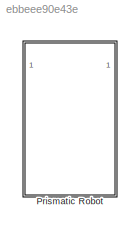
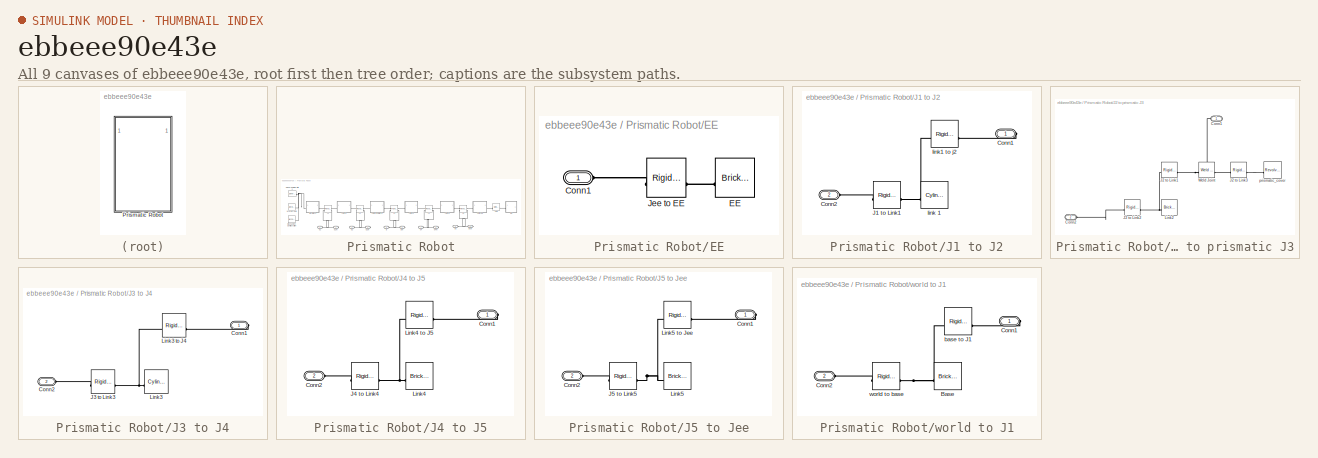
[diagram: thumbnail index - all 9 canvases of the model, root first then tree order]
MODEL slx_ebbeee90e43e
KIND model
CONFIG AbsTol = auto
CONFIG EnableMultiTasking = off
CONFIG FixedStep = auto
CONFIG MaxStep = auto
CONFIG MinStep = auto
CONFIG RelTol = 1e-3
CONFIG SampleTimeConstraint = Unconstrained
CONFIG SolverName = VariableStepAuto
CONFIG StartTime = 0.0
CONFIG StopTime = 5
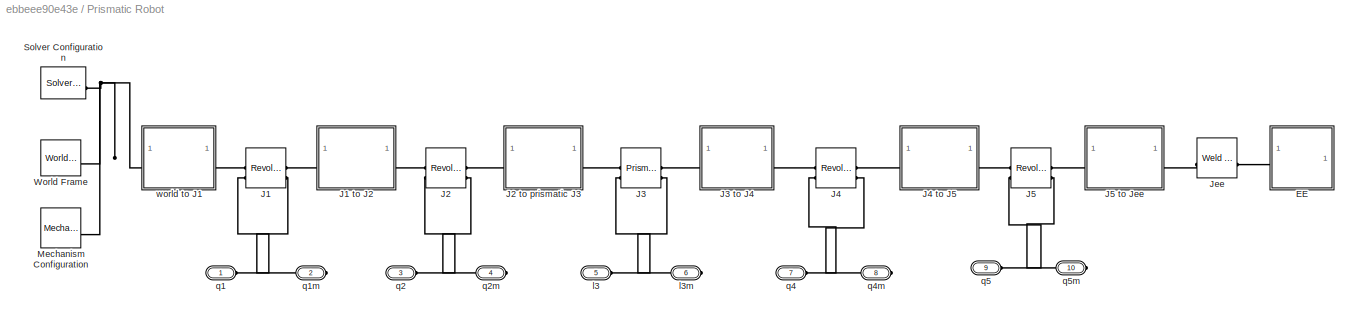
BLOCK [SubSystem] Prismatic Robot
BLOCK [SubSystem] Prismatic Robot/EE
BLOCK [PMIOPort] Prismatic Robot/EE/Conn1
  Side = Left
BLOCK [Reference] Prismatic Robot/EE/EE  REF=sm_lib/Body Elements/Brick Solid
  NameLocation = top
  SourceBlock = sm_lib/Body Elements/Brick Solid
  SourceType = Brick Solid
BLOCK [Reference] Prismatic Robot/EE/Jee to EE  REF=sm_lib/Frames and
Transforms/Rigid
Transform
  SourceBlock = sm_lib/Frames and\nTransforms/Rigid\nTransform
  SourceType = Rigid\nTransform
BLOCK [Reference] Prismatic Robot/J1  REF=sm_lib/Joints/Revolute Joint
  SourceBlock = sm_lib/Joints/Revolute Joint
  SourceType = Revolute Joint
BLOCK [SubSystem] Prismatic Robot/J1 to J2
BLOCK [PMIOPort] Prismatic Robot/J1 to J2/Conn1
  Side = Right
BLOCK [PMIOPort] Prismatic Robot/J1 to J2/Conn2
  Port = 2
  Side = Left
BLOCK [Reference] Prismatic Robot/J1 to J2/J1 to Link1  REF=sm_lib/Frames and
Transforms/Rigid
Transform
  SourceBlock = sm_lib/Frames and\nTransforms/Rigid\nTransform
  SourceType = Rigid\nTransform
BLOCK [Reference] Prismatic Robot/J1 to J2/link 1  REF=sm_lib/Body Elements/Cylindrical Solid
  NameLocation = top
  SourceBlock = sm_lib/Body Elements/Cylindrical Solid
  SourceType = Cylindrical Solid
BLOCK [Reference] Prismatic Robot/J1 to J2/link1 to j2  REF=sm_lib/Frames and
Transforms/Rigid
Transform
  SourceBlock = sm_lib/Frames and\nTransforms/Rigid\nTransform
  SourceType = Rigid\nTransform
BLOCK [Reference] Prismatic Robot/J2  REF=sm_lib/Joints/Revolute Joint
  SourceBlock = sm_lib/Joints/Revolute Joint
  SourceType = Revolute Joint
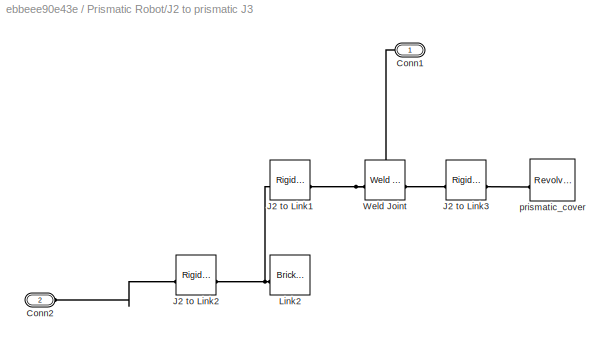
BLOCK [SubSystem] Prismatic Robot/J2 to prismatic J3
BLOCK [PMIOPort] Prismatic Robot/J2 to prismatic J3/Conn1
  Side = Right
BLOCK [PMIOPort] Prismatic Robot/J2 to prismatic J3/Conn2
  Port = 2
  Side = Left
BLOCK [Reference] Prismatic Robot/J2 to prismatic J3/J2 to Link1  REF=sm_lib/Frames and
Transforms/Rigid
Transform
  SourceBlock = sm_lib/Frames and\nTransforms/Rigid\nTransform
  SourceType = Rigid\nTransform
BLOCK [Reference] Prismatic Robot/J2 to prismatic J3/J2 to Link2  REF=sm_lib/Frames and
Transforms/Rigid
Transform
  SourceBlock = sm_lib/Frames and\nTransforms/Rigid\nTransform
  SourceType = Rigid\nTransform
BLOCK [Reference] Prismatic Robot/J2 to prismatic J3/J2 to Link3  REF=sm_lib/Frames and
Transforms/Rigid
Transform
  SourceBlock = sm_lib/Frames and\nTransforms/Rigid\nTransform
  SourceType = Rigid\nTransform
BLOCK [Reference] Prismatic Robot/J2 to prismatic J3/Link2  REF=sm_lib/Body Elements/Brick Solid
  NameLocation = top
  SourceBlock = sm_lib/Body Elements/Brick Solid
  SourceType = Brick Solid
BLOCK [Reference] Prismatic Robot/J2 to prismatic J3/Weld Joint  REF=sm_lib/Joints/Weld Joint
  SourceBlock = sm_lib/Joints/Weld Joint
  SourceType = Weld Joint
BLOCK [Reference] Prismatic Robot/J2 to prismatic J3/prismatic_cover  REF=sm_lib/Body Elements/Revolved Solid
  NameLocation = top
  SourceBlock = sm_lib/Body Elements/Revolved Solid
  SourceType = Revolved Solid
BLOCK [Reference] Prismatic Robot/J3  REF=sm_lib/Joints/Prismatic
Joint
  SourceBlock = sm_lib/Joints/Prismatic\nJoint
  SourceType = Prismatic\nJoint
BLOCK [SubSystem] Prismatic Robot/J3 to J4
BLOCK [PMIOPort] Prismatic Robot/J3 to J4/Conn1
  Side = Right
BLOCK [PMIOPort] Prismatic Robot/J3 to J4/Conn2
  Port = 2
  Side = Left
BLOCK [Reference] Prismatic Robot/J3 to J4/J3 to Link3  REF=sm_lib/Frames and
Transforms/Rigid
Transform
  SourceBlock = sm_lib/Frames and\nTransforms/Rigid\nTransform
  SourceType = Rigid\nTransform
BLOCK [Reference] Prismatic Robot/J3 to J4/Link3  REF=sm_lib/Body Elements/Cylindrical Solid
  NameLocation = top
  SourceBlock = sm_lib/Body Elements/Cylindrical Solid
  SourceType = Cylindrical Solid
BLOCK [Reference] Prismatic Robot/J3 to J4/Link3 to J4  REF=sm_lib/Frames and
Transforms/Rigid
Transform
  SourceBlock = sm_lib/Frames and\nTransforms/Rigid\nTransform
  SourceType = Rigid\nTransform
BLOCK [Reference] Prismatic Robot/J4  REF=sm_lib/Joints/Revolute Joint
  SourceBlock = sm_lib/Joints/Revolute Joint
  SourceType = Revolute Joint
BLOCK [SubSystem] Prismatic Robot/J4 to J5
BLOCK [PMIOPort] Prismatic Robot/J4 to J5/Conn1
  Side = Right
BLOCK [PMIOPort] Prismatic Robot/J4 to J5/Conn2
  Port = 2
  Side = Left
BLOCK [Reference] Prismatic Robot/J4 to J5/J4 to Link4  REF=sm_lib/Frames and
Transforms/Rigid
Transform
  SourceBlock = sm_lib/Frames and\nTransforms/Rigid\nTransform
  SourceType = Rigid\nTransform
BLOCK [Reference] Prismatic Robot/J4 to J5/Link4  REF=sm_lib/Body Elements/Brick Solid
  NameLocation = top
  SourceBlock = sm_lib/Body Elements/Brick Solid
  SourceType = Brick Solid
BLOCK [Reference] Prismatic Robot/J4 to J5/Link4 to J5  REF=sm_lib/Frames and
Transforms/Rigid
Transform
  SourceBlock = sm_lib/Frames and\nTransforms/Rigid\nTransform
  SourceType = Rigid\nTransform
BLOCK [Reference] Prismatic Robot/J5  REF=sm_lib/Joints/Revolute Joint
  SourceBlock = sm_lib/Joints/Revolute Joint
  SourceType = Revolute Joint
BLOCK [SubSystem] Prismatic Robot/J5 to Jee
BLOCK [PMIOPort] Prismatic Robot/J5 to Jee/Conn1
  Side = Right
BLOCK [PMIOPort] Prismatic Robot/J5 to Jee/Conn2
  Port = 2
  Side = Left
BLOCK [Reference] Prismatic Robot/J5 to Jee/J5 to Link5  REF=sm_lib/Frames and
Transforms/Rigid
Transform
  SourceBlock = sm_lib/Frames and\nTransforms/Rigid\nTransform
  SourceType = Rigid\nTransform
BLOCK [Reference] Prismatic Robot/J5 to Jee/Link5  REF=sm_lib/Body Elements/Brick Solid
  NameLocation = top
  SourceBlock = sm_lib/Body Elements/Brick Solid
  SourceType = Brick Solid
BLOCK [Reference] Prismatic Robot/J5 to Jee/Link5 to Jee  REF=sm_lib/Frames and
Transforms/Rigid
Transform
  SourceBlock = sm_lib/Frames and\nTransforms/Rigid\nTransform
  SourceType = Rigid\nTransform
BLOCK [Reference] Prismatic Robot/Jee  REF=sm_lib/Joints/Weld Joint
  SourceBlock = sm_lib/Joints/Weld Joint
  SourceType = Weld Joint
BLOCK [Reference] Prismatic Robot/Mechanism Configuration  REF=sm_lib/Utilities/Mechanism
Configuration
  SourceBlock = sm_lib/Utilities/Mechanism\nConfiguration
  SourceType = Mechanism\nConfiguration
BLOCK [Reference] Prismatic Robot/Solver Configuration  REF=nesl_utility/Solver
Configuration
  SourceBlock = nesl_utility/Solver\nConfiguration
  SourceType = Solver\nConfiguration
BLOCK [Reference] Prismatic Robot/World Frame  REF=sm_lib/Frames and
Transforms/World Frame
  SourceBlock = sm_lib/Frames and\nTransforms/World Frame
  SourceType = World Frame
BLOCK [PMIOPort] Prismatic Robot/l3
  Port = 5
  Side = Left
BLOCK [PMIOPort] Prismatic Robot/l3m
  Port = 6
  Side = Right
BLOCK [PMIOPort] Prismatic Robot/q1
  Side = Left
BLOCK [PMIOPort] Prismatic Robot/q1m
  Port = 2
  Side = Right
BLOCK [PMIOPort] Prismatic Robot/q2
  Port = 3
  Side = Left
BLOCK [PMIOPort] Prismatic Robot/q2m
  Port = 4
  Side = Right
BLOCK [PMIOPort] Prismatic Robot/q4
  Port = 7
  Side = Left
BLOCK [PMIOPort] Prismatic Robot/q4m
  Port = 8
  Side = Right
BLOCK [PMIOPort] Prismatic Robot/q5
  Port = 9
  Side = Left
BLOCK [PMIOPort] Prismatic Robot/q5m
  Port = 10
  Side = Right
BLOCK [SubSystem] Prismatic Robot/world to J1
BLOCK [Reference] Prismatic Robot/world to J1/Base  REF=sm_lib/Body Elements/Brick Solid
  NameLocation = top
  SourceBlock = sm_lib/Body Elements/Brick Solid
  SourceType = Brick Solid
BLOCK [PMIOPort] Prismatic Robot/world to J1/Conn1
  Side = Right
BLOCK [PMIOPort] Prismatic Robot/world to J1/Conn2
  Port = 2
  Side = Left
BLOCK [Reference] Prismatic Robot/world to J1/base to J1  REF=sm_lib/Frames and
Transforms/Rigid
Transform
  SourceBlock = sm_lib/Frames and\nTransforms/Rigid\nTransform
  SourceType = Rigid\nTransform
BLOCK [Reference] Prismatic Robot/world to J1/world to base  REF=sm_lib/Frames and
Transforms/Rigid
Transform
  SourceBlock = sm_lib/Frames and\nTransforms/Rigid\nTransform
  SourceType = Rigid\nTransform
PLINE Prismatic Robot/EE/Conn1:RConn1 -- Prismatic Robot/EE/Jee to EE:LConn1
PLINE Prismatic Robot/EE/EE:RConn1 -- Prismatic Robot/EE/Jee to EE:RConn1
PLINE Prismatic Robot/EE:LConn1 -- Prismatic Robot/Jee:RConn1
PLINE Prismatic Robot/J1 to J2/Conn1:RConn1 -- Prismatic Robot/J1 to J2/link1 to j2:RConn1
PLINE Prismatic Robot/J1 to J2/Conn2:RConn1 -- Prismatic Robot/J1 to J2/J1 to Link1:LConn1
PNET net1: Prismatic Robot/J1 to J2/J1 to Link1:RConn1 -- Prismatic Robot/J1 to J2/link 1:RConn1 -- Prismatic Robot/J1 to J2/link1 to j2:LConn1
PLINE Prismatic Robot/J1 to J2:LConn1 -- Prismatic Robot/J1:RConn1
PLINE Prismatic Robot/J1 to J2:RConn1 -- Prismatic Robot/J2:LConn1
PLINE Prismatic Robot/J1:LConn1 -- Prismatic Robot/world to J1:RConn1
PLINE Prismatic Robot/J1:LConn2 -- Prismatic Robot/q1:RConn1
PLINE Prismatic Robot/J1:RConn2 -- Prismatic Robot/q1m:RConn1
PNET net2: Prismatic Robot/J2 to prismatic J3/Conn1:RConn1 -- Prismatic Robot/J2 to prismatic J3/J2 to Link1:RConn1 -- Prismatic Robot/J2 to prismatic J3/Weld Joint:LConn1
PLINE Prismatic Robot/J2 to prismatic J3/Conn2:RConn1 -- Prismatic Robot/J2 to prismatic J3/J2 to Link2:LConn1
PNET net3: Prismatic Robot/J2 to prismatic J3/J2 to Link1:LConn1 -- Prismatic Robot/J2 to prismatic J3/J2 to Link2:RConn1 -- Prismatic Robot/J2 to prismatic J3/Link2:RConn1
PLINE Prismatic Robot/J2 to prismatic J3/J2 to Link3:LConn1 -- Prismatic Robot/J2 to prismatic J3/Weld Joint:RConn1
PLINE Prismatic Robot/J2 to prismatic J3/J2 to Link3:RConn1 -- Prismatic Robot/J2 to prismatic J3/prismatic_cover:RConn1
PLINE Prismatic Robot/J2 to prismatic J3:LConn1 -- Prismatic Robot/J2:RConn1
PLINE Prismatic Robot/J2 to prismatic J3:RConn1 -- Prismatic Robot/J3:LConn1
PLINE Prismatic Robot/J2:LConn2 -- Prismatic Robot/q2:RConn1
PLINE Prismatic Robot/J2:RConn2 -- Prismatic Robot/q2m:RConn1
PLINE Prismatic Robot/J3 to J4/Conn1:RConn1 -- Prismatic Robot/J3 to J4/Link3 to J4:RConn1
PLINE Prismatic Robot/J3 to J4/Conn2:RConn1 -- Prismatic Robot/J3 to J4/J3 to Link3:LConn1
PNET net4: Prismatic Robot/J3 to J4/J3 to Link3:RConn1 -- Prismatic Robot/J3 to J4/Link3 to J4:LConn1 -- Prismatic Robot/J3 to J4/Link3:RConn1
PLINE Prismatic Robot/J3 to J4:LConn1 -- Prismatic Robot/J3:RConn1
PLINE Prismatic Robot/J3 to J4:RConn1 -- Prismatic Robot/J4:LConn1
PLINE Prismatic Robot/J3:LConn2 -- Prismatic Robot/l3:RConn1
PLINE Prismatic Robot/J3:RConn2 -- Prismatic Robot/l3m:RConn1
PLINE Prismatic Robot/J4 to J5/Conn1:RConn1 -- Prismatic Robot/J4 to J5/Link4 to J5:RConn1
PLINE Prismatic Robot/J4 to J5/Conn2:RConn1 -- Prismatic Robot/J4 to J5/J4 to Link4:LConn1
PNET net5: Prismatic Robot/J4 to J5/J4 to Link4:RConn1 -- Prismatic Robot/J4 to J5/Link4 to J5:LConn1 -- Prismatic Robot/J4 to J5/Link4:RConn1
PLINE Prismatic Robot/J4 to J5:LConn1 -- Prismatic Robot/J4:RConn1
PLINE Prismatic Robot/J4 to J5:RConn1 -- Prismatic Robot/J5:LConn1
PLINE Prismatic Robot/J4:LConn2 -- Prismatic Robot/q4:RConn1
PLINE Prismatic Robot/J4:RConn2 -- Prismatic Robot/q4m:RConn1
PLINE Prismatic Robot/J5 to Jee/Conn1:RConn1 -- Prismatic Robot/J5 to Jee/Link5 to Jee:RConn1
PLINE Prismatic Robot/J5 to Jee/Conn2:RConn1 -- Prismatic Robot/J5 to Jee/J5 to Link5:LConn1
PNET net6: Prismatic Robot/J5 to Jee/J5 to Link5:RConn1 -- Prismatic Robot/J5 to Jee/Link5 to Jee:LConn1 -- Prismatic Robot/J5 to Jee/Link5:RConn1
PLINE Prismatic Robot/J5 to Jee:LConn1 -- Prismatic Robot/J5:RConn1
PLINE Prismatic Robot/J5 to Jee:RConn1 -- Prismatic Robot/Jee:LConn1
PLINE Prismatic Robot/J5:LConn2 -- Prismatic Robot/q5:RConn1
PLINE Prismatic Robot/J5:RConn2 -- Prismatic Robot/q5m:RConn1
PNET net7: Prismatic Robot/Mechanism Configuration:RConn1 -- Prismatic Robot/Solver Configuration:RConn1 -- Prismatic Robot/World Frame:RConn1 -- Prismatic Robot/world to J1:LConn1
PNET net8: Prismatic Robot/world to J1/Base:RConn1 -- Prismatic Robot/world to J1/base to J1:LConn1 -- Prismatic Robot/world to J1/world to base:RConn1
PLINE Prismatic Robot/world to J1/Conn1:RConn1 -- Prismatic Robot/world to J1/base to J1:RConn1
PLINE Prismatic Robot/world to J1/Conn2:RConn1 -- Prismatic Robot/world to J1/world to base:LConn1
note: PNET lines group multi-terminal physical nets as a canonical sorted terminal list (undirected conserving connections); 2-terminal nets keep the pairwise PLINE form
